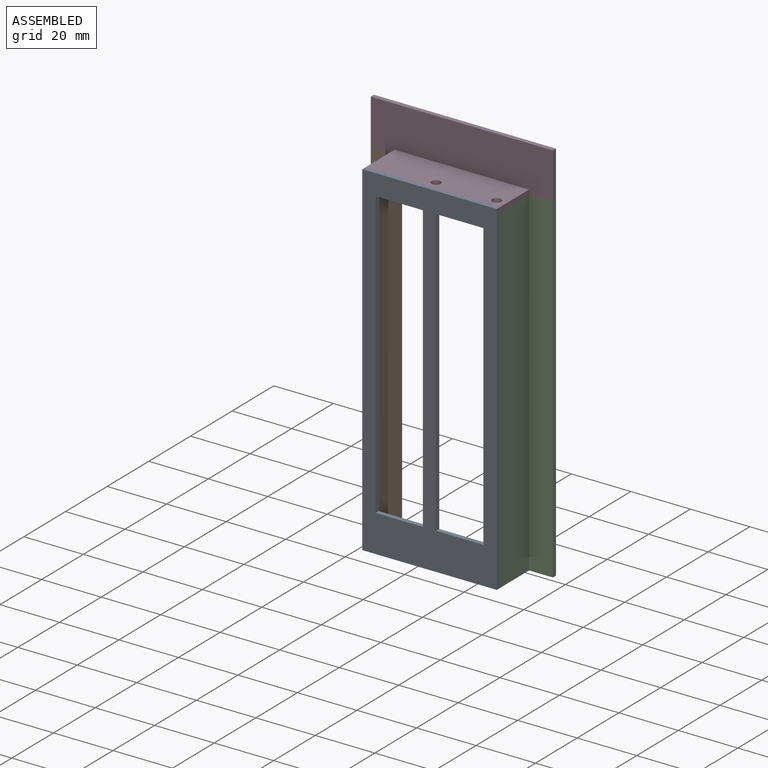
[diagram: assembled view]
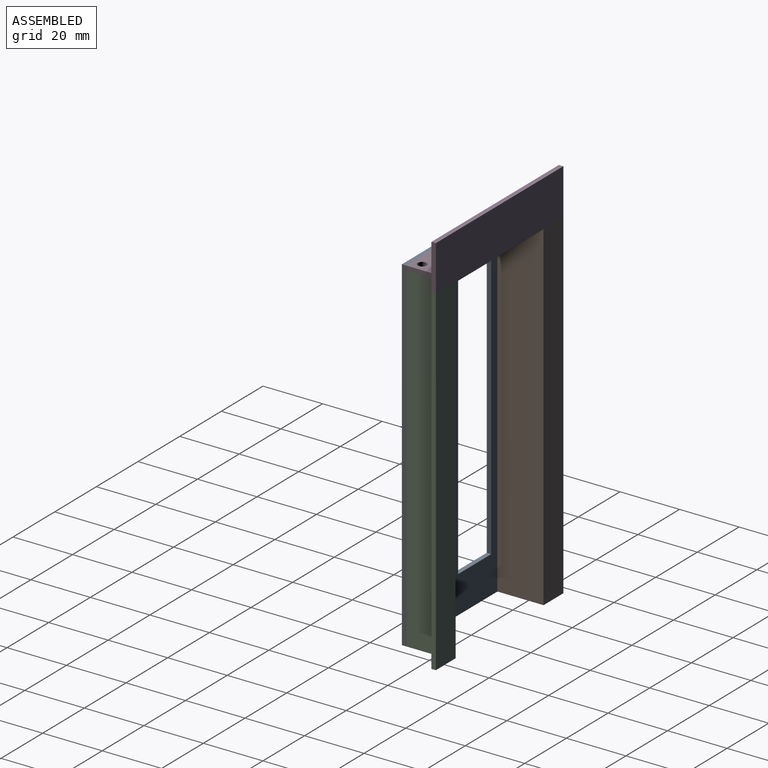
[diagram: assembled view, second angle]
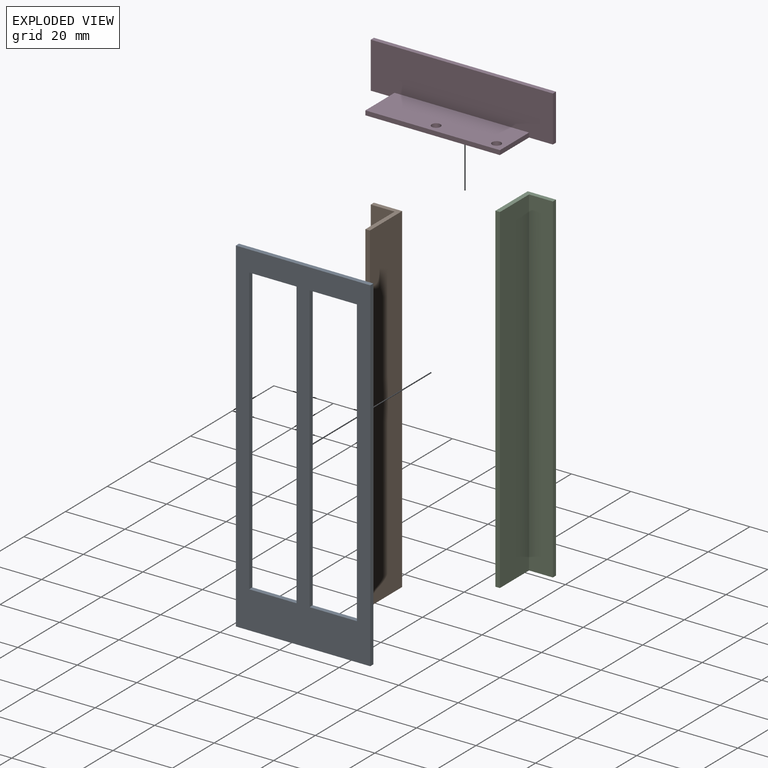
[diagram: exploded view]
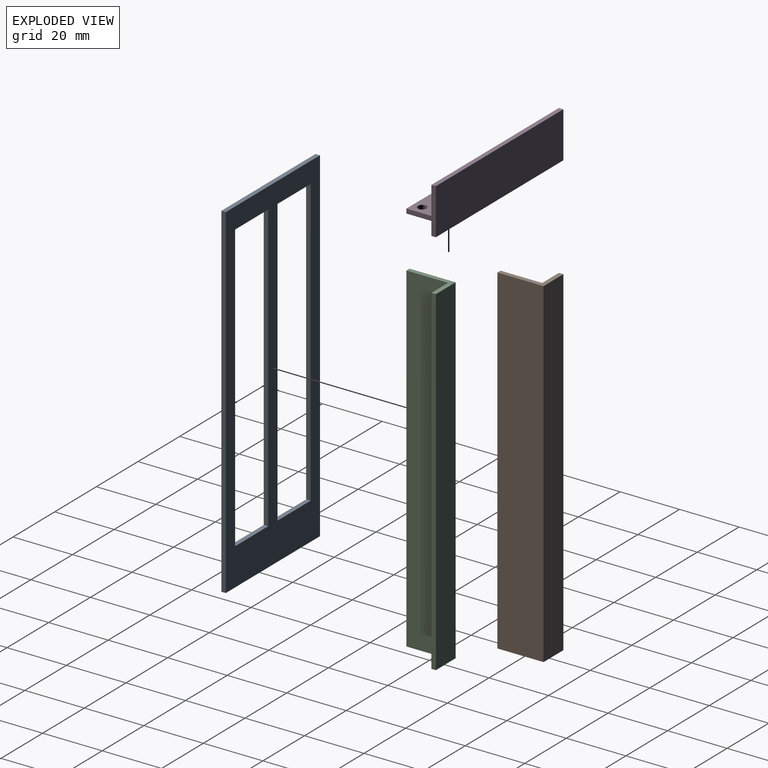
[diagram: exploded view, second angle]
ASSEMBLY  parts=4 mates=3
PART A: 14 faces, bbox 45.2x1.5x115.7 mm
  f0: plane 45.2x1.5mm, normal (0,0,-1), area 67.8mm2, adj f1,f11,f12,f13
  f1: plane 115.71x1.5mm, normal (1,0,0), area 173.6mm2, adj f0,f2,f12,f13
  f2: plane 45.2x1.5mm, normal (0,0,1), area 67.8mm2, adj f1,f11,f12,f13
  f3: plane 96.21x1.5mm, normal (1,0,0), area 144.3mm2, adj f4,f9,f12,f13
  f4: plane 15.88x1.5mm, normal (0,0,-1), area 23.8mm2, adj f3,f5,f12,f13
  f5: plane 96.21x1.5mm, normal (-1,0,0), area 144.3mm2, adj f4,f9,f12,f13
  f6: plane 96.21x1.5mm, normal (1,0,0), area 144.3mm2, adj f7,f10,f12,f13
  f7: plane 15.88x1.5mm, normal (0,0,-1), area 23.8mm2, adj f6,f8,f12,f13
  f8: plane 96.21x1.5mm, normal (-1,0,0), area 144.3mm2, adj f7,f10,f12,f13
  f9: plane 15.88x1.5mm, normal (0,0,1), area 23.8mm2, adj f3,f5,f12,f13
  f10: plane 15.88x1.5mm, normal (0,0,1), area 23.8mm2, adj f6,f8,f12,f13
  f11: plane 115.71x1.5mm, normal (-1,0,0), area 173.6mm2, adj f0,f2,f12,f13
  f12: plane 115.71x45.2mm, normal (0,-1,0), area 2174.5mm2, adj f0,f1,f2,f3,f4,f5,f6,f7
  f13: plane 115.71x45.2mm, normal (0,1,0), area 2174.5mm2, adj f0,f1,f2,f3,f4,f5,f6,f7
PART B: 8 faces, bbox 9.5x15.5x114.2 mm
  f0: plane 114.21x9.5mm, normal (0,1,0), area 1085mm2, adj f1,f5,f6,f7
  f1: plane 114.21x1.5mm, normal (-1,0,0), area 171.3mm2, adj f0,f2,f6,f7
  f2: plane 114.21x8mm, normal (0,-1,0), area 913.7mm2, adj f1,f3,f6,f7
  f3: plane 114.21x14mm, normal (-1,0,0), area 1598.9mm2, adj f2,f4,f6,f7
  f4: plane 114.21x1.5mm, normal (0,-1,0), area 171.3mm2, adj f3,f5,f6,f7
  f5: plane 114.21x15.5mm, normal (1,0,0), area 1770.3mm2, adj f0,f4,f6,f7
  f6: plane 15.5x9.5mm, normal (0,0,1), area 35.2mm2, adj f0,f1,f2,f3,f4,f5
  f7: plane 15.5x9.5mm, normal (0,0,-1), area 35.2mm2, adj f0,f1,f2,f3,f4,f5
PART C: 8 faces, bbox 9.5x15.5x114.2 mm
  f0: plane 114.21x9.5mm, normal (0,1,0), area 1085mm2, adj f1,f5,f6,f7
  f1: plane 114.21x1.5mm, normal (1,0,0), area 171.3mm2, adj f0,f2,f6,f7
  f2: plane 114.21x8mm, normal (0,-1,0), area 913.7mm2, adj f1,f3,f6,f7
  f3: plane 114.21x14mm, normal (1,0,0), area 1598.9mm2, adj f2,f4,f6,f7
  f4: plane 114.21x1.5mm, normal (0,-1,0), area 171.3mm2, adj f3,f5,f6,f7
  f5: plane 114.21x15.5mm, normal (-1,0,0), area 1770.3mm2, adj f0,f4,f6,f7
  f6: plane 15.5x9.5mm, normal (0,0,1), area 35.2mm2, adj f0,f1,f2,f3,f4,f5
  f7: plane 15.5x9.5mm, normal (0,0,-1), area 35.2mm2, adj f0,f1,f2,f3,f4,f5
PART D: 12 faces, bbox 61.2x15.5x15.5 mm
  f0: plane 45.2x1.5mm, normal (0,-1,0), area 67.8mm2, adj f1,f2,f10,f11
  f1: plane 45.2x14mm, normal (0,0,1), area 618.7mm2, adj f0,f4,f8,f9,f10,f11
  f2: plane 61.2x15.5mm, normal (0,0,-1), area 710.5mm2, adj f0,f4,f5,f6,f7,f8,f9,f10
  f3: plane 61.2x1.5mm, normal (0,0,1), area 91.8mm2, adj f4,f5,f6,f7
  f4: plane 61.2x15.5mm, normal (0,-1,0), area 880.8mm2, adj f1,f2,f3,f6,f7,f10,f11
  f5: plane 61.2x15.5mm, normal (0,1,0), area 948.6mm2, adj f2,f3,f6,f7
  f6: plane 15.5x1.5mm, normal (1,0,0), area 23.2mm2, adj f2,f3,f4,f5
  f7: plane 15.5x1.5mm, normal (-1,0,0), area 23.2mm2, adj f2,f3,f4,f5
  f8: cylinder r=1.5mm len=3mm, axis (0,0,1), area 14.1mm2, adj f1,f2
  f9: cylinder r=1.5mm len=3mm, axis (0,0,1), area 14.1mm2, adj f1,f2
  f10: plane 14x1.5mm, normal (-1,0,0), area 21mm2, adj f0,f1,f2,f4
  f11: plane 14x1.5mm, normal (1,0,0), area 21mm2, adj f0,f1,f2,f4
PLACE A t=(27.9,-6.4,5.91)mm
PLACE B t=(27.9,9.1,5.16)mm
PLACE C t=(27.9,9.1,5.16)mm
PLACE D t=(27.9,9.1,62.26)mm
MATE fastened B.f6 <-> D.f2  axis (0,0,1) through (5.3,-6.4,62.26)mm
MATE fastened A.f13 <-> D.f0  axis (0,1,0) through (50.5,-6.4,63.76)mm
MATE fastened D.f2 <-> C.f6  axis (0,0,-1) through (50.5,-6.4,62.26)mm
